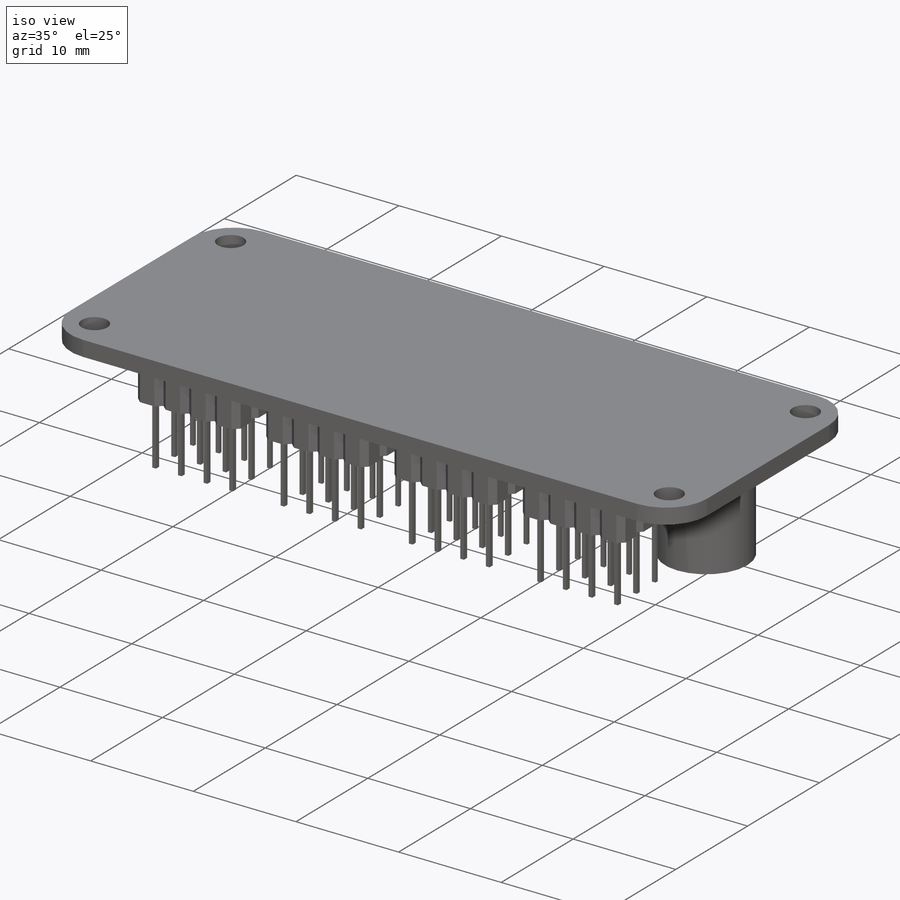
[diagram: iso view]
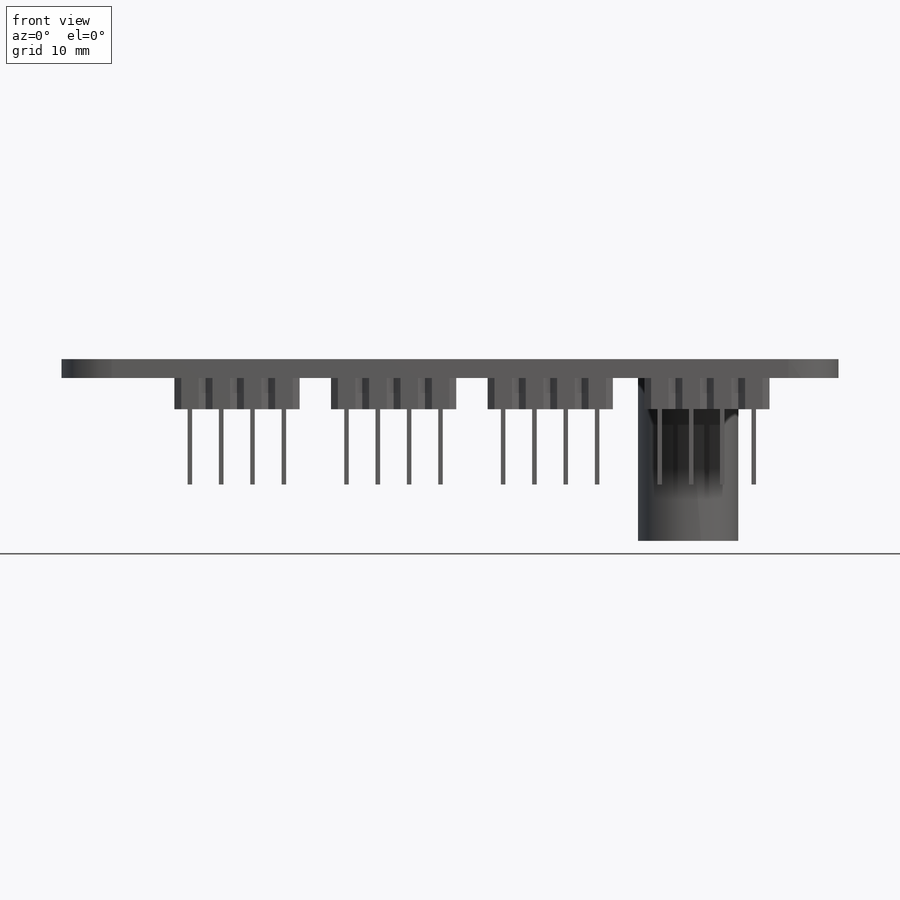
[diagram: front view]
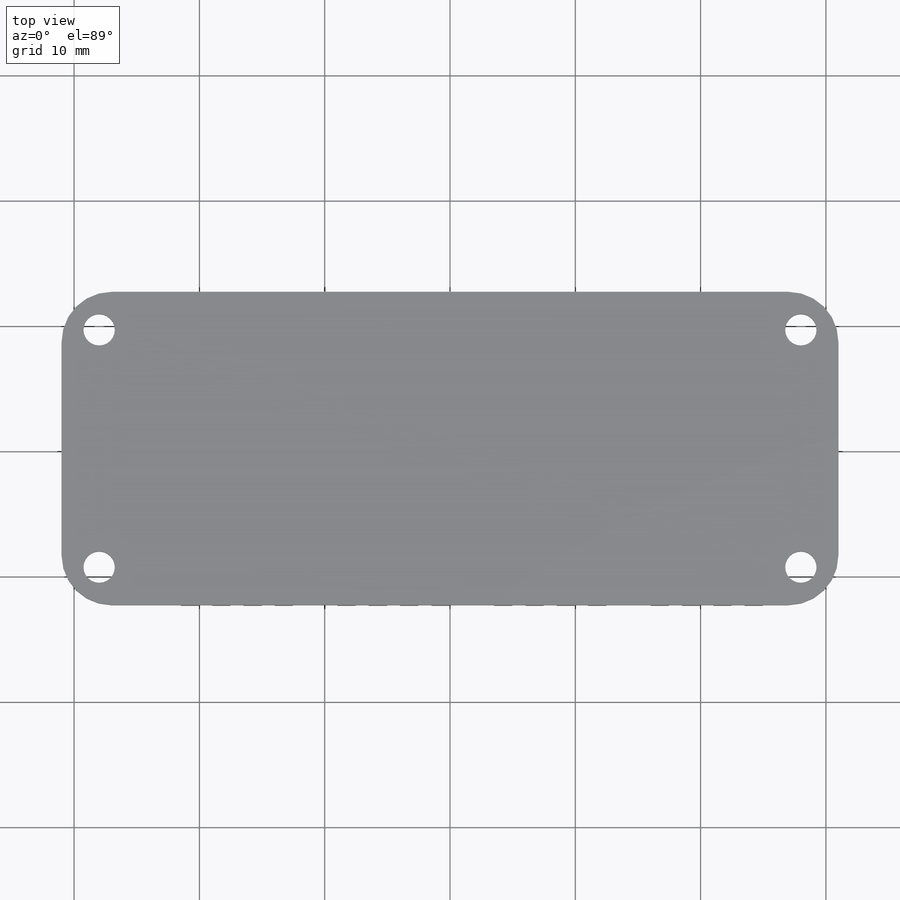
[diagram: top view]
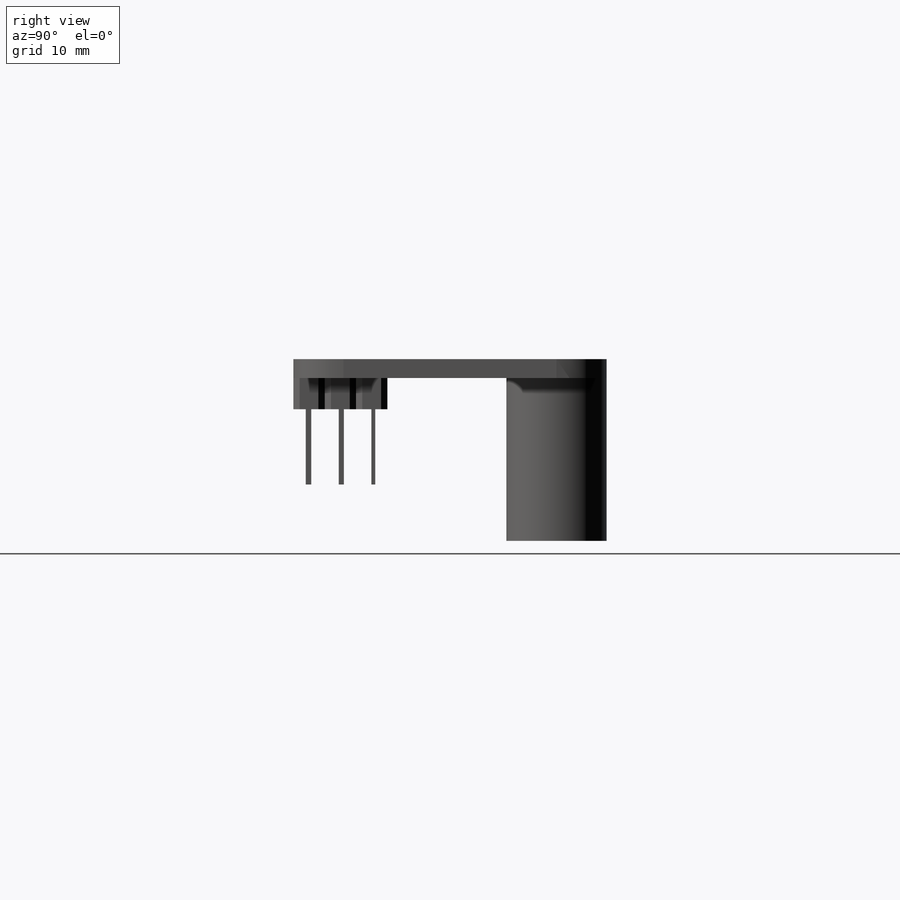
[diagram: right view]
SOLIDWORKS PART (.sldprt)
format: sldprt  version: not decoded by parser v0  size: 514,560 bytes
history: native  units: mm
features: sketch x5, extrude x4, plane x3, pattern_linear x2, material x1, fillet x1, cut_extrude x1 (+8 scaffold rows collapsed)
feature tree (25):
  scaffold x8  (default folders/planes/origin — collapsed)
  material  "Material <sin especificar>"
  plane  "Alzado"
  plane  "Planta"
  plane  "Vista lateral"
  sketch  "Croquis1"  dims[D1=62.0mm D2=25.0mm]
  extrude  "Saliente-Extruir1"  Depth=1.5mm
  fillet  "Redondeo1"  Radius=4mm
  sketch  "Croquis2"  dims[D3=2.5mm D1=56.0mm D2=18.94mm]
  cut_extrude  "Cortar-Extruir1"  Depth=10mm
  sketch  "Croquis3"  dims[c1.D1=8.0mm c1.D3=8.02mm c1.D2=12.0mm c2.D3=4.0mm]
  extrude  "Saliente-Extruir2"  Depth=13mm
  sketch  "Croquis4"  dims[D1=2.5mm D2=7.5mm D3=5.5mm D4=2.5mm D5=2.5mm D6=~0.743263mm]
  extrude  "Saliente-Extruir3"  Depth=2.5mm
  sketch  "Croquis5"
  extrude  "Saliente-Extruir4"  Depth=6mm
  pattern_linear  "MatrizL1"  Count1=4 Count2=1 Spacing1=2.5mm Spacing2=10mm
  pattern_linear  "MatrizL2"  Count1=4 Count2=1 Spacing1=12.5mm Spacing2=10mm
decode coverage: 12 of 13 modeling features carry decoded parameters
note: ~ marks probable driven/reference dimensions
note: suppression state not decoded; provenance and decode notes live in map.json
